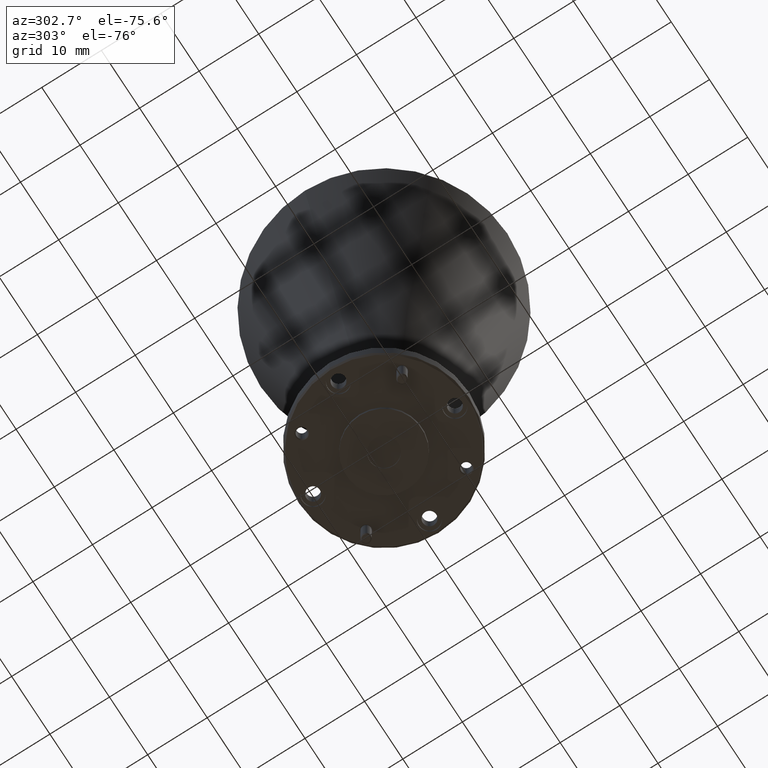
[diagram: clean part render]
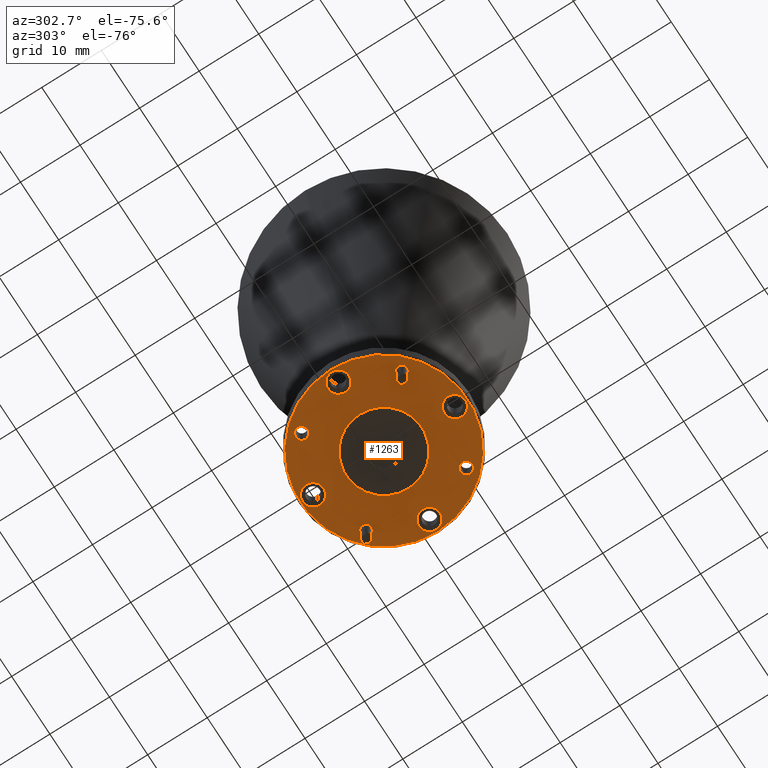
[diagram: same view with one face highlighted and labeled with its STEP entity id]
A machine part, auxiliary view. The second image highlights one B-rep face of the part: STEP entity #1263.
In plain terms, the highlighted planar face has unit normal (0, -0, 1).
Its self-contained STEP definition (entity closure, byte-faithful):
#14 = ORIENTED_EDGE ( 'NONE', *, *, #193, .F. ) ;
#22 = FACE_BOUND ( 'NONE', #1738, .T. ) ;
#32 = EDGE_LOOP ( 'NONE', ( #1310, #1178 ) ) ;
#43 = DIRECTION ( 'NONE',  ( -0.0000000000000000000, -0.0000000000000000000, 1.000000000000000000 ) ) ;
#47 = DIRECTION ( 'NONE',  ( -0.0000000000000000000, -0.0000000000000000000, -1.000000000000000000 ) ) ;
#56 = ORIENTED_EDGE ( 'NONE', *, *, #755, .F. ) ;
#58 = DIRECTION ( 'NONE',  ( 1.000000000000000000, 0.0000000000000000000, 0.0000000000000000000 ) ) ;
#73 = VERTEX_POINT ( 'NONE', #108 ) ;
#81 = CARTESIAN_POINT ( 'NONE',  ( 0.7248216317397034900, 1.133992482487602400, 0.03013612407725344700 ) ) ;
#83 = CIRCLE ( 'NONE', #1792, 0.03999999999999998000 ) ;
#88 = EDGE_LOOP ( 'NONE', ( #1451, #56 ) ) ;
#103 = AXIS2_PLACEMENT_3D ( 'NONE', #1395, #1580, #606 ) ;
#105 = AXIS2_PLACEMENT_3D ( 'NONE', #278, #1752, #941 ) ;
#108 = CARTESIAN_POINT ( 'NONE',  ( 0.4048216317397033700, 0.6652424824876024300, 0.03013612407725344700 ) ) ;
#120 = VERTEX_POINT ( 'NONE', #1811 ) ;
#121 = CIRCLE ( 'NONE', #1917, 0.07000000000000000700 ) ;
#124 = DIRECTION ( 'NONE',  ( -1.000000000000000000, 0.0000000000000000000, 0.0000000000000000000 ) ) ;
#126 = DIRECTION ( 'NONE',  ( -1.000000000000000000, 0.0000000000000000000, 0.0000000000000000000 ) ) ;
#129 = VERTEX_POINT ( 'NONE', #862 ) ;
#145 = EDGE_LOOP ( 'NONE', ( #2056, #935 ) ) ;
#161 = CIRCLE ( 'NONE', #1508, 0.03999999999999998000 ) ;
#186 = VERTEX_POINT ( 'NONE', #1881 ) ;
#193 = EDGE_CURVE ( 'NONE', #412, #73, #121, .T. ) ;
#202 = EDGE_CURVE ( 'NONE', #383, #1940, #938, .T. ) ;
#216 = VERTEX_POINT ( 'NONE', #1723 ) ;
#238 = CIRCLE ( 'NONE', #1438, 0.06999999999999993700 ) ;
#239 = ORIENTED_EDGE ( 'NONE', *, *, #1436, .F. ) ;
#240 = VERTEX_POINT ( 'NONE', #81 ) ;
#278 = CARTESIAN_POINT ( 'NONE',  ( 0.4748216317397033800, 0.6652424824876024300, 0.03013612407725344700 ) ) ;
#282 = DIRECTION ( 'NONE',  ( -1.000000000000000000, 0.0000000000000000000, 0.0000000000000000000 ) ) ;
#322 = AXIS2_PLACEMENT_3D ( 'NONE', #1045, #574, #1040 ) ;
#323 = PLANE ( 'NONE',  #1990 ) ;
#327 = EDGE_CURVE ( 'NONE', #1448, #338, #1373, .T. ) ;
#329 = AXIS2_PLACEMENT_3D ( 'NONE', #523, #1325, #1981 ) ;
#338 = VERTEX_POINT ( 'NONE', #2059 ) ;
#362 = DIRECTION ( 'NONE',  ( -0.0000000000000000000, -0.0000000000000000000, 1.000000000000000000 ) ) ;
#371 = CARTESIAN_POINT ( 'NONE',  ( 0.7712779354208974000, 1.465448786168796400, 0.03013612407725344700 ) ) ;
#383 = VERTEX_POINT ( 'NONE', #679 ) ;
#387 = ORIENTED_EDGE ( 'NONE', *, *, #968, .F. ) ;
#393 = VERTEX_POINT ( 'NONE', #1983 ) ;
#407 = ORIENTED_EDGE ( 'NONE', *, *, #641, .F. ) ;
#412 = VERTEX_POINT ( 'NONE', #1175 ) ;
#432 = CIRCLE ( 'NONE', #2045, 0.03500000000000000300 ) ;
#468 = DIRECTION ( 'NONE',  ( -1.000000000000000000, 0.0000000000000000000, 0.0000000000000000000 ) ) ;
#516 = CARTESIAN_POINT ( 'NONE',  ( 0.4748216317397033800, 1.133992482487602400, 0.03013612407725344700 ) ) ;
#520 = CARTESIAN_POINT ( 'NONE',  ( 0.4748216317397033800, 1.602742482487602400, 0.03013612407725344700 ) ) ;
#523 = CARTESIAN_POINT ( 'NONE',  ( 0.006071631739703355900, 1.133992482487602400, 0.03013612407725344700 ) ) ;
#528 = EDGE_LOOP ( 'NONE', ( #1907, #407 ) ) ;
#535 = FACE_BOUND ( 'NONE', #88, .T. ) ;
#547 = EDGE_CURVE ( 'NONE', #814, #393, #238, .T. ) ;
#574 = DIRECTION ( 'NONE',  ( -0.0000000000000000000, -0.0000000000000000000, -1.000000000000000000 ) ) ;
#582 = DIRECTION ( 'NONE',  ( -1.000000000000000000, 0.0000000000000000000, 0.0000000000000000000 ) ) ;
#583 = CARTESIAN_POINT ( 'NONE',  ( 0.9435716317397033800, 1.133992482487602400, 0.03013612407725344700 ) ) ;
#585 = ORIENTED_EDGE ( 'NONE', *, *, #1232, .F. ) ;
#603 = AXIS2_PLACEMENT_3D ( 'NONE', #1457, #972, #1124 ) ;
#606 = DIRECTION ( 'NONE',  ( 1.000000000000000000, 0.0000000000000000000, 0.0000000000000000000 ) ) ;
#607 = CIRCLE ( 'NONE', #1347, 0.03500000000000003800 ) ;
#627 = DIRECTION ( 'NONE',  ( 0.0000000000000000000, 0.0000000000000000000, -1.000000000000000000 ) ) ;
#630 = CARTESIAN_POINT ( 'NONE',  ( 0.8062779354208975400, 1.465448786168796400, 0.03013612407725344700 ) ) ;
#631 = EDGE_CURVE ( 'NONE', #1066, #1337, #784, .T. ) ;
#633 = CIRCLE ( 'NONE', #1692, 0.07000000000000000700 ) ;
#641 = EDGE_CURVE ( 'NONE', #1337, #1066, #1906, .T. ) ;
#648 = EDGE_CURVE ( 'NONE', #1410, #240, #1472, .T. ) ;
#669 = CARTESIAN_POINT ( 'NONE',  ( 0.1433653280585092700, 0.8025361788064084800, 0.03013612407725344700 ) ) ;
#677 = DIRECTION ( 'NONE',  ( -1.000000000000000000, 0.0000000000000000000, 0.0000000000000000000 ) ) ;
#679 = CARTESIAN_POINT ( 'NONE',  ( 0.4048216317397033700, 1.602742482487602400, 0.03013612407725344700 ) ) ;
#681 = ORIENTED_EDGE ( 'NONE', *, *, #2104, .F. ) ;
#689 = CARTESIAN_POINT ( 'NONE',  ( -0.06392836826029663100, 1.133992482487602400, 0.03013612407725344700 ) ) ;
#747 = AXIS2_PLACEMENT_3D ( 'NONE', #583, #1073, #124 ) ;
#755 = EDGE_CURVE ( 'NONE', #1932, #216, #83, .T. ) ;
#762 = CIRCLE ( 'NONE', #1889, 0.03500000000000003800 ) ;
#763 = ORIENTED_EDGE ( 'NONE', *, *, #2100, .F. ) ;
#776 = DIRECTION ( 'NONE',  ( 0.0000000000000000000, 0.0000000000000000000, -1.000000000000000000 ) ) ;
#784 = CIRCLE ( 'NONE', #1081, 0.06999999999999999300 ) ;
#794 = DIRECTION ( 'NONE',  ( -1.000000000000000000, 0.0000000000000000000, 0.0000000000000000000 ) ) ;
#802 = CIRCLE ( 'NONE', #1112, 0.03500000000000000300 ) ;
#814 = VERTEX_POINT ( 'NONE', #1211 ) ;
#860 = ORIENTED_EDGE ( 'NONE', *, *, #547, .F. ) ;
#862 = CARTESIAN_POINT ( 'NONE',  ( 0.1783653280585092700, 0.8025361788064084800, 0.03013612407725344700 ) ) ;
#898 = EDGE_LOOP ( 'NONE', ( #585, #681 ) ) ;
#906 = ORIENTED_EDGE ( 'NONE', *, *, #1402, .F. ) ;
#920 = CARTESIAN_POINT ( 'NONE',  ( 0.006071631739703355900, 1.133992482487602400, 0.03013612407725344700 ) ) ;
#935 = ORIENTED_EDGE ( 'NONE', *, *, #1582, .F. ) ;
#936 = DIRECTION ( 'NONE',  ( -0.0000000000000000000, -0.0000000000000000000, -1.000000000000000000 ) ) ;
#938 = CIRCLE ( 'NONE', #1172, 0.07000000000000000700 ) ;
#941 = DIRECTION ( 'NONE',  ( -1.000000000000000000, 0.0000000000000000000, 0.0000000000000000000 ) ) ;
#958 = DIRECTION ( 'NONE',  ( 1.000000000000000000, 0.0000000000000000000, 0.0000000000000000000 ) ) ;
#968 = EDGE_CURVE ( 'NONE', #120, #1009, #762, .T. ) ;
#972 = DIRECTION ( 'NONE',  ( -0.0000000000000000000, -0.0000000000000000000, -1.000000000000000000 ) ) ;
#1003 = FACE_BOUND ( 'NONE', #32, .T. ) ;
#1009 = VERTEX_POINT ( 'NONE', #371 ) ;
#1038 = EDGE_LOOP ( 'NONE', ( #906, #860 ) ) ;
#1040 = DIRECTION ( 'NONE',  ( -1.000000000000000000, 0.0000000000000000000, 0.0000000000000000000 ) ) ;
#1045 = CARTESIAN_POINT ( 'NONE',  ( 0.1433653280585092700, 1.465448786168796800, 0.03013612407725344700 ) ) ;
#1059 = FACE_BOUND ( 'NONE', #145, .T. ) ;
#1066 = VERTEX_POINT ( 'NONE', #689 ) ;
#1070 = DIRECTION ( 'NONE',  ( 0.0000000000000000000, 0.0000000000000000000, -1.000000000000000000 ) ) ;
#1073 = DIRECTION ( 'NONE',  ( 0.0000000000000000000, 0.0000000000000000000, -1.000000000000000000 ) ) ;
#1075 = DIRECTION ( 'NONE',  ( 0.0000000000000000000, 0.0000000000000000000, -1.000000000000000000 ) ) ;
#1081 = AXIS2_PLACEMENT_3D ( 'NONE', #920, #1075, #126 ) ;
#1096 = VERTEX_POINT ( 'NONE', #1651 ) ;
#1112 = AXIS2_PLACEMENT_3D ( 'NONE', #669, #1127, #1795 ) ;
#1115 = CARTESIAN_POINT ( 'NONE',  ( 0.4748216317397033800, 0.6652424824876024300, 0.03013612407725344700 ) ) ;
#1124 = DIRECTION ( 'NONE',  ( -1.000000000000000000, 0.0000000000000000000, 0.0000000000000000000 ) ) ;
#1127 = DIRECTION ( 'NONE',  ( -0.0000000000000000000, -0.0000000000000000000, -1.000000000000000000 ) ) ;
#1139 = VERTEX_POINT ( 'NONE', #2002 ) ;
#1172 = AXIS2_PLACEMENT_3D ( 'NONE', #520, #1371, #582 ) ;
#1175 = CARTESIAN_POINT ( 'NONE',  ( 0.5448216317397033300, 0.6652424824876024300, 0.03013612407725344700 ) ) ;
#1178 = ORIENTED_EDGE ( 'NONE', *, *, #1344, .F. ) ;
#1182 = FACE_BOUND ( 'NONE', #1038, .T. ) ;
#1190 = AXIS2_PLACEMENT_3D ( 'NONE', #1484, #43, #58 ) ;
#1211 = CARTESIAN_POINT ( 'NONE',  ( 1.013571631739703400, 1.133992482487602400, 0.03013612407725344700 ) ) ;
#1227 = CIRCLE ( 'NONE', #2074, 0.5525000000000002100 ) ;
#1232 = EDGE_CURVE ( 'NONE', #186, #129, #802, .T. ) ;
#1252 = CARTESIAN_POINT ( 'NONE',  ( 0.5448216317397033300, 1.602742482487602400, 0.03013612407725344700 ) ) ;
#1263 = ADVANCED_FACE ( 'NONE', ( #1854, #1411, #535, #1182, #1681, #1445, #1059, #22, #1003, #1759 ), #323, .F. ) ;
#1300 = CIRCLE ( 'NONE', #322, 0.03999999999999998000 ) ;
#1310 = ORIENTED_EDGE ( 'NONE', *, *, #1776, .F. ) ;
#1325 = DIRECTION ( 'NONE',  ( 0.0000000000000000000, 0.0000000000000000000, -1.000000000000000000 ) ) ;
#1331 = CIRCLE ( 'NONE', #747, 0.06999999999999993700 ) ;
#1337 = VERTEX_POINT ( 'NONE', #1586 ) ;
#1344 = EDGE_CURVE ( 'NONE', #1096, #1139, #161, .T. ) ;
#1347 = AXIS2_PLACEMENT_3D ( 'NONE', #630, #1433, #2084 ) ;
#1371 = DIRECTION ( 'NONE',  ( 0.0000000000000000000, 0.0000000000000000000, -1.000000000000000000 ) ) ;
#1373 = CIRCLE ( 'NONE', #103, 0.5525000000000002100 ) ;
#1379 = CARTESIAN_POINT ( 'NONE',  ( 0.1433653280585092700, 1.465448786168796800, 0.03013612407725344700 ) ) ;
#1392 = CARTESIAN_POINT ( 'NONE',  ( 0.2248216317397033800, 1.133992482487602400, 0.03013612407725344700 ) ) ;
#1395 = CARTESIAN_POINT ( 'NONE',  ( 0.4748216317397033800, 1.133992482487602400, 0.03013612407725344700 ) ) ;
#1399 = CARTESIAN_POINT ( 'NONE',  ( 1.027321631739703600, 1.133992482487602400, 0.03013612407725344700 ) ) ;
#1402 = EDGE_CURVE ( 'NONE', #393, #814, #1331, .T. ) ;
#1410 = VERTEX_POINT ( 'NONE', #1392 ) ;
#1411 = FACE_BOUND ( 'NONE', #898, .T. ) ;
#1424 = ORIENTED_EDGE ( 'NONE', *, *, #2092, .T. ) ;
#1433 = DIRECTION ( 'NONE',  ( -0.0000000000000000000, -0.0000000000000000000, -1.000000000000000000 ) ) ;
#1436 = EDGE_CURVE ( 'NONE', #73, #412, #1442, .T. ) ;
#1438 = AXIS2_PLACEMENT_3D ( 'NONE', #1565, #1070, #2043 ) ;
#1440 = CARTESIAN_POINT ( 'NONE',  ( 0.4748216317397033800, 1.133992482487602400, 0.03013612407725344700 ) ) ;
#1442 = CIRCLE ( 'NONE', #105, 0.07000000000000000700 ) ;
#1445 = FACE_BOUND ( 'NONE', #528, .T. ) ;
#1448 = VERTEX_POINT ( 'NONE', #1399 ) ;
#1451 = ORIENTED_EDGE ( 'NONE', *, *, #1518, .F. ) ;
#1457 = CARTESIAN_POINT ( 'NONE',  ( 0.8062779354208975400, 0.8025361788064083700, 0.03013612407725344700 ) ) ;
#1469 = DIRECTION ( 'NONE',  ( 0.0000000000000000000, 0.0000000000000000000, -1.000000000000000000 ) ) ;
#1472 = CIRCLE ( 'NONE', #1190, 0.2500000000000000600 ) ;
#1484 = CARTESIAN_POINT ( 'NONE',  ( 0.4748216317397033800, 1.133992482487602400, 0.03013612407725344700 ) ) ;
#1508 = AXIS2_PLACEMENT_3D ( 'NONE', #1379, #1727, #282 ) ;
#1511 = CARTESIAN_POINT ( 'NONE',  ( 0.8062779354208975400, 1.465448786168796400, 0.03013612407725344700 ) ) ;
#1518 = EDGE_CURVE ( 'NONE', #216, #1932, #1925, .T. ) ;
#1565 = CARTESIAN_POINT ( 'NONE',  ( 0.9435716317397033800, 1.133992482487602400, 0.03013612407725344700 ) ) ;
#1580 = DIRECTION ( 'NONE',  ( 0.0000000000000000000, 0.0000000000000000000, -1.000000000000000000 ) ) ;
#1582 = EDGE_CURVE ( 'NONE', #1940, #383, #633, .T. ) ;
#1586 = CARTESIAN_POINT ( 'NONE',  ( 0.07607163173970334100, 1.133992482487602400, 0.03013612407725344700 ) ) ;
#1601 = CIRCLE ( 'NONE', #2095, 0.2500000000000000600 ) ;
#1619 = CARTESIAN_POINT ( 'NONE',  ( 0.1433653280585092700, 0.8025361788064084800, 0.03013612407725344700 ) ) ;
#1624 = CARTESIAN_POINT ( 'NONE',  ( 0.4748216317397033800, 1.696492482487602400, 0.03013612407725344700 ) ) ;
#1628 = EDGE_LOOP ( 'NONE', ( #239, #14 ) ) ;
#1631 = ORIENTED_EDGE ( 'NONE', *, *, #327, .T. ) ;
#1641 = CARTESIAN_POINT ( 'NONE',  ( 0.8462779354208974600, 0.8025361788064083700, 0.03013612407725344700 ) ) ;
#1651 = CARTESIAN_POINT ( 'NONE',  ( 0.1833653280585092500, 1.465448786168796800, 0.03013612407725344700 ) ) ;
#1681 = FACE_BOUND ( 'NONE', #1628, .T. ) ;
#1689 = ORIENTED_EDGE ( 'NONE', *, *, #648, .T. ) ;
#1692 = AXIS2_PLACEMENT_3D ( 'NONE', #1942, #1469, #794 ) ;
#1710 = EDGE_LOOP ( 'NONE', ( #1631, #1424 ) ) ;
#1723 = CARTESIAN_POINT ( 'NONE',  ( 0.7662779354208975000, 0.8025361788064083700, 0.03013612407725344700 ) ) ;
#1725 = EDGE_CURVE ( 'NONE', #240, #1410, #1601, .T. ) ;
#1727 = DIRECTION ( 'NONE',  ( -0.0000000000000000000, -0.0000000000000000000, -1.000000000000000000 ) ) ;
#1728 = EDGE_LOOP ( 'NONE', ( #763, #387 ) ) ;
#1738 = EDGE_LOOP ( 'NONE', ( #1883, #1689 ) ) ;
#1752 = DIRECTION ( 'NONE',  ( 0.0000000000000000000, 0.0000000000000000000, -1.000000000000000000 ) ) ;
#1759 = FACE_BOUND ( 'NONE', #1728, .T. ) ;
#1774 = DIRECTION ( 'NONE',  ( 1.000000000000000000, 0.0000000000000000000, 0.0000000000000000000 ) ) ;
#1776 = EDGE_CURVE ( 'NONE', #1139, #1096, #1300, .T. ) ;
#1792 = AXIS2_PLACEMENT_3D ( 'NONE', #1832, #47, #677 ) ;
#1795 = DIRECTION ( 'NONE',  ( -1.000000000000000000, 0.0000000000000000000, 0.0000000000000000000 ) ) ;
#1811 = CARTESIAN_POINT ( 'NONE',  ( 0.8412779354208975700, 1.465448786168796400, 0.03013612407725344700 ) ) ;
#1832 = CARTESIAN_POINT ( 'NONE',  ( 0.8062779354208975400, 0.8025361788064083700, 0.03013612407725344700 ) ) ;
#1843 = DIRECTION ( 'NONE',  ( -1.000000000000000000, 0.0000000000000000000, 0.0000000000000000000 ) ) ;
#1854 = FACE_OUTER_BOUND ( 'NONE', #1710, .T. ) ;
#1881 = CARTESIAN_POINT ( 'NONE',  ( 0.1083653280585092600, 0.8025361788064084800, 0.03013612407725344700 ) ) ;
#1883 = ORIENTED_EDGE ( 'NONE', *, *, #1725, .T. ) ;
#1889 = AXIS2_PLACEMENT_3D ( 'NONE', #1511, #1965, #1843 ) ;
#1906 = CIRCLE ( 'NONE', #329, 0.06999999999999999300 ) ;
#1907 = ORIENTED_EDGE ( 'NONE', *, *, #631, .F. ) ;
#1917 = AXIS2_PLACEMENT_3D ( 'NONE', #1115, #776, #468 ) ;
#1922 = DIRECTION ( 'NONE',  ( -1.000000000000000000, 0.0000000000000000000, 0.0000000000000000000 ) ) ;
#1925 = CIRCLE ( 'NONE', #603, 0.03999999999999998000 ) ;
#1932 = VERTEX_POINT ( 'NONE', #1641 ) ;
#1940 = VERTEX_POINT ( 'NONE', #1252 ) ;
#1941 = DIRECTION ( 'NONE',  ( 0.0000000000000000000, -0.0000000000000000000, 1.000000000000000000 ) ) ;
#1942 = CARTESIAN_POINT ( 'NONE',  ( 0.4748216317397033800, 1.602742482487602400, 0.03013612407725344700 ) ) ;
#1965 = DIRECTION ( 'NONE',  ( -0.0000000000000000000, -0.0000000000000000000, -1.000000000000000000 ) ) ;
#1968 = DIRECTION ( 'NONE',  ( 1.000000000000000000, 0.0000000000000000000, 0.0000000000000000000 ) ) ;
#1981 = DIRECTION ( 'NONE',  ( -1.000000000000000000, 0.0000000000000000000, 0.0000000000000000000 ) ) ;
#1983 = CARTESIAN_POINT ( 'NONE',  ( 0.8735716317397034200, 1.133992482487602400, 0.03013612407725344700 ) ) ;
#1990 = AXIS2_PLACEMENT_3D ( 'NONE', #1624, #1941, #958 ) ;
#2002 = CARTESIAN_POINT ( 'NONE',  ( 0.1033653280585092700, 1.465448786168796800, 0.03013612407725344700 ) ) ;
#2043 = DIRECTION ( 'NONE',  ( -1.000000000000000000, 0.0000000000000000000, 0.0000000000000000000 ) ) ;
#2045 = AXIS2_PLACEMENT_3D ( 'NONE', #1619, #936, #1922 ) ;
#2056 = ORIENTED_EDGE ( 'NONE', *, *, #202, .F. ) ;
#2059 = CARTESIAN_POINT ( 'NONE',  ( -0.07767836826029681000, 1.133992482487602400, 0.03013612407725344700 ) ) ;
#2074 = AXIS2_PLACEMENT_3D ( 'NONE', #1440, #627, #1774 ) ;
#2084 = DIRECTION ( 'NONE',  ( -1.000000000000000000, 0.0000000000000000000, 0.0000000000000000000 ) ) ;
#2092 = EDGE_CURVE ( 'NONE', #338, #1448, #1227, .T. ) ;
#2095 = AXIS2_PLACEMENT_3D ( 'NONE', #516, #362, #1968 ) ;
#2100 = EDGE_CURVE ( 'NONE', #1009, #120, #607, .T. ) ;
#2104 = EDGE_CURVE ( 'NONE', #129, #186, #432, .T. ) ;